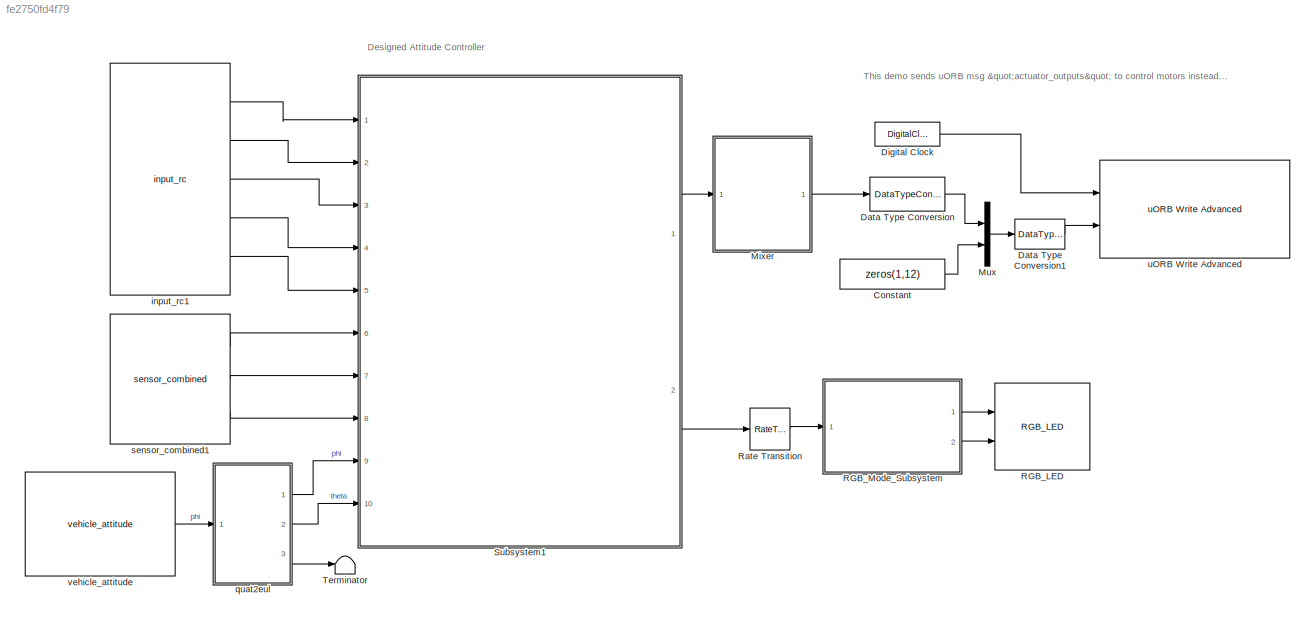
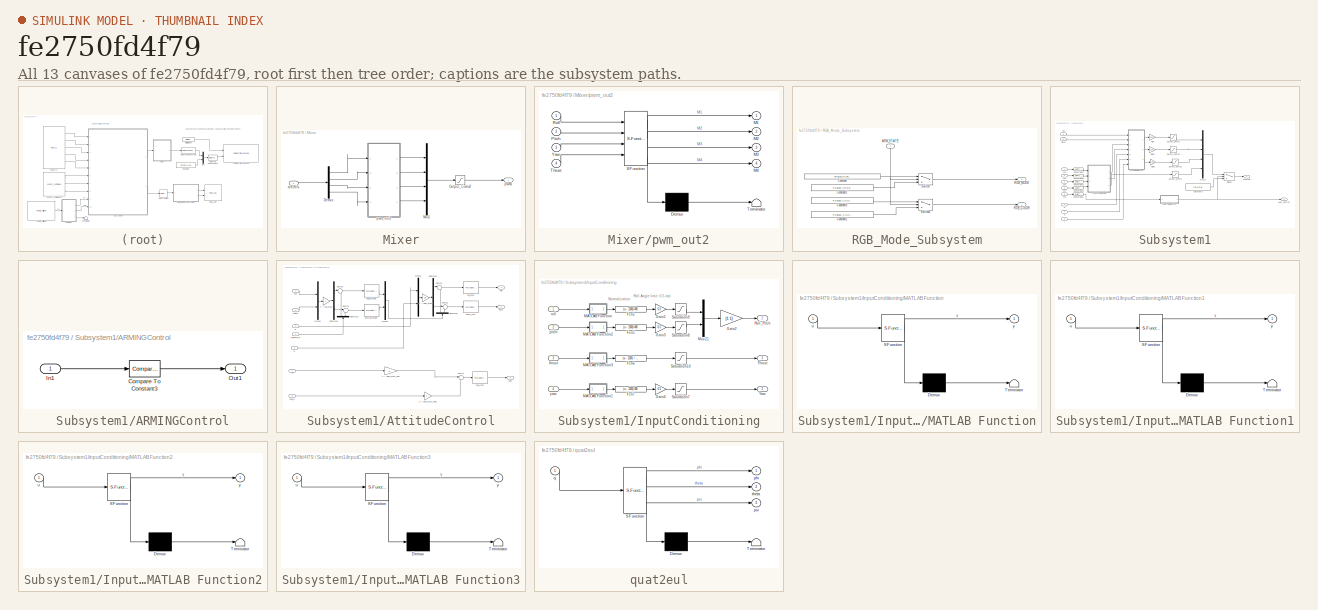
[diagram: thumbnail index - all 13 canvases of the model, root first then tree order]
MODEL slx_fe2750fd4f79
KIND model
CONFIG AbsTol = auto
CONFIG EnableMultiTasking = off
CONFIG FixedStep = auto
CONFIG InitFcn = if exist('Init_control.m','file')\n     Init_control;\nend\n
CONFIG MaxStep = auto
CONFIG MinStep = auto
CONFIG PreLoadFcn = filepath  = fileparts(get_param(bdroot, 'FileName'))\ncd(filepath);
CONFIG RelTol = 1e-3
CONFIG SampleTimeConstraint = Unconstrained
CONFIG Solver = FixedStepDiscrete
CONFIG SolverName = FixedStepDiscrete
CONFIG StartTime = 0.0
CONFIG StopTime = inf
BLOCK [Constant] Constant
  Value = zeros(1,12)
BLOCK [DataTypeConversion] Data Type Conversion
  OutDataTypeStr = double
  RndMeth = Floor
  SaturateOnIntegerOverflow = off
BLOCK [DataTypeConversion] Data Type Conversion1
  OutDataTypeStr = single
  RndMeth = Floor
  SaturateOnIntegerOverflow = off
BLOCK [DigitalClock] Digital Clock
  SampleTime = -1
BLOCK [SubSystem] Mixer
  Ports = [1, 1]
  RequestExecContextInheritance = off
  Variant = off
BLOCK [Demux] Mixer/Demux
  DisplayOption = bar
  Ports = [1, 4]
BLOCK [Mux] Mixer/Mux1
  DisplayOption = bar
  Ports = [4, 1]
BLOCK [Saturate] Mixer/Output_Limits2
  InputPortMap = u0
  LowerLimit = 1000
  Ports = [1, 1]
  UpperLimit = 2000
BLOCK [Inport] Mixer/controls
  IconDisplay = Port number
BLOCK [SubSystem] Mixer/pwm_out2
  ErrorFcn = Stateflow.Translate.translate
  PermitHierarchicalResolution = ExplicitOnly
  Ports = [4, 4]
  RequestExecContextInheritance = off
  SFBlockType = MATLAB Function
  SystemSampleTime = 0.004
  TreatAsAtomicUnit = on
  Variant = off
BLOCK [Demux] Mixer/pwm_out2/ Demux 
  Outputs = 1
  Ports = [1, 1]
BLOCK [S-Function] Mixer/pwm_out2/ SFunction 
  EnableBusSupport = on
  FunctionName = sf_sfun
  PortCounts = [4 5]
  Ports = [4, 5]
  SFcnIsStateOwnerBlock = off
  SFunctionDeploymentMode = off
  Tag = Stateflow S-Function Exp4_AttitudeSystemCodeGen_old 2
BLOCK [Terminator] Mixer/pwm_out2/ Terminator 
BLOCK [Outport] Mixer/pwm_out2/M1
  IconDisplay = Port number
BLOCK [Outport] Mixer/pwm_out2/M2
  IconDisplay = Port number
  Port = 2
BLOCK [Outport] Mixer/pwm_out2/M3
  IconDisplay = Port number
  Port = 3
BLOCK [Outport] Mixer/pwm_out2/M4
  IconDisplay = Port number
  Port = 4
BLOCK [Inport] Mixer/pwm_out2/Pitch
  IconDisplay = Port number
  Port = 2
BLOCK [Inport] Mixer/pwm_out2/Roll
  IconDisplay = Port number
BLOCK [Inport] Mixer/pwm_out2/Thrust
  IconDisplay = Port number
  Port = 4
BLOCK [Inport] Mixer/pwm_out2/Yaw
  IconDisplay = Port number
  Port = 3
BLOCK [Outport] Mixer/pwms
  IconDisplay = Port number
BLOCK [Mux] Mux
  DisplayOption = bar
  Inputs = 2
  Ports = [2, 1]
BLOCK [Reference] RGB_LED  REF=pixhawk_slib_sensors_actuators/RGB_LED
  Ports = [2]
  SourceBlock = pixhawk_slib_sensors_actuators/RGB_LED
  SourceProductName = Pixhawk Target Blocks
  SourceType = PX4_RGBLED - controls the mode and color of the Pixhawk RGB LED
BLOCK [SubSystem] RGB_Mode_Subsystem
  Ports = [1, 2]
  RequestExecContextInheritance = off
  Variant = off
BLOCK [Inport] RGB_Mode_Subsystem/ARM_STATE
  IconDisplay = Port number
BLOCK [Constant] RGB_Mode_Subsystem/Constant
  OutDataTypeStr = Enum: RGBLED_MODE_ENUM
  Value = RGBLED_MODE_ENUM.SL_MODE_BLINK_FAST
BLOCK [Constant] RGB_Mode_Subsystem/Constant1
  OutDataTypeStr = Enum: RGBLED_MODE_ENUM
  Value = RGBLED_MODE_ENUM.SL_MODE_BREATHE
BLOCK [Constant] RGB_Mode_Subsystem/Constant2
  OutDataTypeStr = Enum: RGBLED_COLOR_ENUM
  Value = RGBLED_COLOR_ENUM.SL_COLOR_GREEN
BLOCK [Constant] RGB_Mode_Subsystem/Constant3
  OutDataTypeStr = Enum: RGBLED_COLOR_ENUM
  Value = RGBLED_COLOR_ENUM.SL_COLOR_RED
BLOCK [Outport] RGB_Mode_Subsystem/RGB_COLOR
  IconDisplay = Port number
  Port = 2
BLOCK [Outport] RGB_Mode_Subsystem/RGB_MODE
  IconDisplay = Port number
BLOCK [Switch] RGB_Mode_Subsystem/Switch
  Criteria = u2 ~= 0
  InputSameDT = off
  SaturateOnIntegerOverflow = off
  Threshold = 1500
BLOCK [Switch] RGB_Mode_Subsystem/Switch1
  Criteria = u2 ~= 0
  InputSameDT = off
  SaturateOnIntegerOverflow = off
  Threshold = 1500
BLOCK [RateTransition] Rate Transition
  OutPortSampleTime = 1
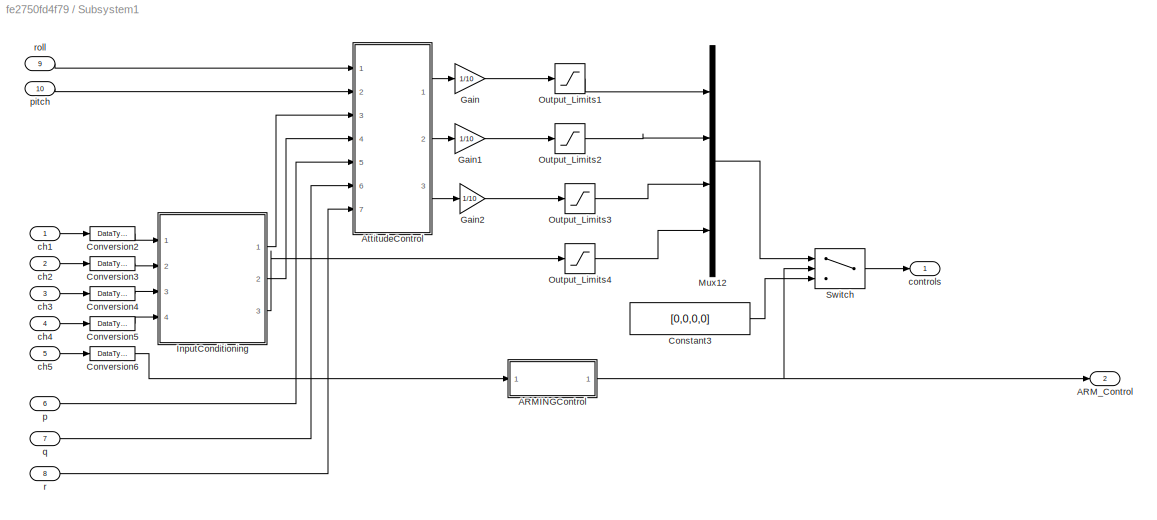
BLOCK [SubSystem] Subsystem1
  Ports = [10, 2]
  RequestExecContextInheritance = off
  Variant = off
BLOCK [SubSystem] Subsystem1/ARMINGControl
  Ports = [1, 1]
  RequestExecContextInheritance = off
  Variant = off
BLOCK [Reference] Subsystem1/ARMINGControl/Compare To Constant3  REF=simulink/Logic and Bit
Operations/Compare
To Constant
  Ports = [1, 1]
  SourceBlock = simulink/Logic and Bit\nOperations/Compare\nTo Constant
  SourceProductBaseCode = SL
  SourceProductName = Simulink
  SourceType = Compare To Constant
BLOCK [Inport] Subsystem1/ARMINGControl/In1
  IconDisplay = Port number
BLOCK [Outport] Subsystem1/ARMINGControl/Out1
  IconDisplay = Port number
BLOCK [Outport] Subsystem1/ARM_Control
  IconDisplay = Port number
  Port = 2
  PortDimensions = 1
  SamplingMode = Sample based
  SignalType = real
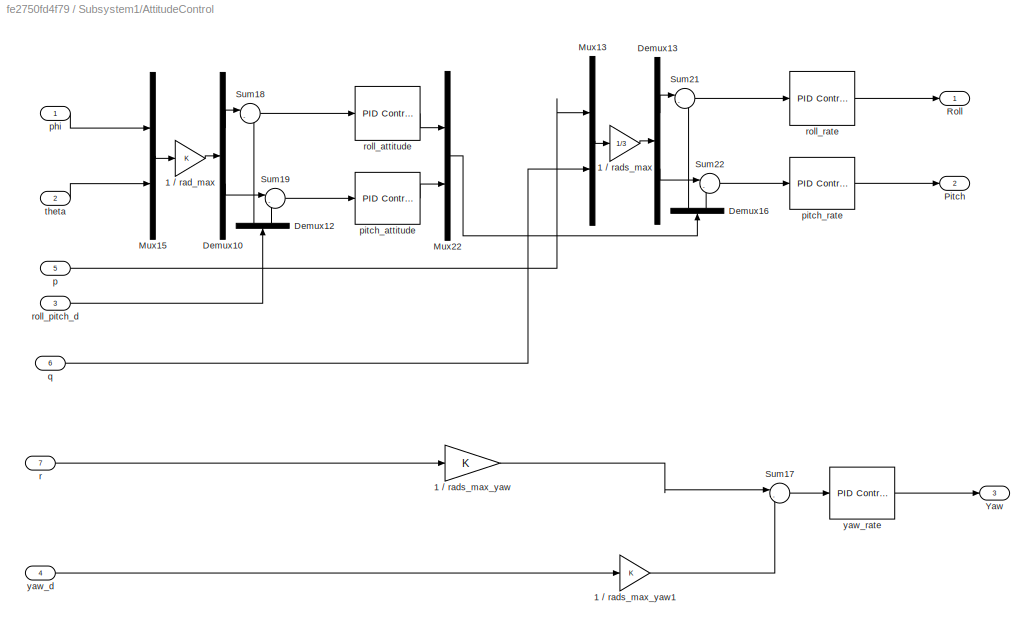
BLOCK [SubSystem] Subsystem1/AttitudeControl
  Ports = [7, 3]
  RequestExecContextInheritance = off
  Variant = off
BLOCK [Gain] Subsystem1/AttitudeControl/1 // rad_max
  OutDataTypeStr = Inherit: Inherit via internal rule
  ParamDataTypeStr = Inherit: Inherit via internal rule
  SaturateOnIntegerOverflow = off
BLOCK [Gain] Subsystem1/AttitudeControl/1 // rads_max
  Gain = 1/3
  OutDataTypeStr = Inherit: Inherit via internal rule
  ParamDataTypeStr = Inherit: Inherit via internal rule
  SaturateOnIntegerOverflow = off
BLOCK [Gain] Subsystem1/AttitudeControl/1 // rads_max_yaw
  OutDataTypeStr = Inherit: Inherit via internal rule
  ParamDataTypeStr = Inherit: Inherit via internal rule
  SaturateOnIntegerOverflow = off
BLOCK [Gain] Subsystem1/AttitudeControl/1 // rads_max_yaw1
  OutDataTypeStr = Inherit: Inherit via internal rule
  ParamDataTypeStr = Inherit: Inherit via internal rule
  SaturateOnIntegerOverflow = off
BLOCK [Demux] Subsystem1/AttitudeControl/Demux10
  DisplayOption = bar
  Outputs = 2
  Ports = [1, 2]
BLOCK [Demux] Subsystem1/AttitudeControl/Demux12
  DisplayOption = bar
  Outputs = 2
  Ports = [1, 2]
BLOCK [Demux] Subsystem1/AttitudeControl/Demux13
  DisplayOption = bar
  Outputs = 2
  Ports = [1, 2]
BLOCK [Demux] Subsystem1/AttitudeControl/Demux16
  DisplayOption = bar
  Outputs = 2
  Ports = [1, 2]
BLOCK [Mux] Subsystem1/AttitudeControl/Mux13
  DisplayOption = bar
  Inputs = 2
  Ports = [2, 1]
BLOCK [Mux] Subsystem1/AttitudeControl/Mux15
  DisplayOption = bar
  Inputs = 2
  Ports = [2, 1]
BLOCK [Mux] Subsystem1/AttitudeControl/Mux22
  DisplayOption = bar
  Inputs = 2
  Ports = [2, 1]
BLOCK [Outport] Subsystem1/AttitudeControl/Pitch
  IconDisplay = Port number
  Port = 2
BLOCK [Outport] Subsystem1/AttitudeControl/Roll
  IconDisplay = Port number
BLOCK [Sum] Subsystem1/AttitudeControl/Sum17
  IconShape = round
  InputSameDT = off
  Inputs = |-+
  OutDataTypeStr = Inherit: Inherit via internal rule
  Ports = [2, 1]
  SaturateOnIntegerOverflow = off
BLOCK [Sum] Subsystem1/AttitudeControl/Sum18
  IconShape = round
  InputSameDT = off
  Inputs = |-+
  OutDataTypeStr = Inherit: Inherit via internal rule
  Ports = [2, 1]
  SaturateOnIntegerOverflow = off
BLOCK [Sum] Subsystem1/AttitudeControl/Sum19
  IconShape = round
  InputSameDT = off
  Inputs = |-+
  OutDataTypeStr = Inherit: Inherit via internal rule
  Ports = [2, 1]
  SaturateOnIntegerOverflow = off
BLOCK [Sum] Subsystem1/AttitudeControl/Sum21
  IconShape = round
  InputSameDT = off
  Inputs = |-+
  OutDataTypeStr = Inherit: Inherit via internal rule
  Ports = [2, 1]
  SaturateOnIntegerOverflow = off
BLOCK [Sum] Subsystem1/AttitudeControl/Sum22
  IconShape = round
  InputSameDT = off
  Inputs = |-+
  OutDataTypeStr = Inherit: Inherit via internal rule
  Ports = [2, 1]
  SaturateOnIntegerOverflow = off
BLOCK [Outport] Subsystem1/AttitudeControl/Yaw
  IconDisplay = Port number
  Port = 3
BLOCK [Inport] Subsystem1/AttitudeControl/p
  IconDisplay = Port number
  Port = 5
BLOCK [Inport] Subsystem1/AttitudeControl/phi
  IconDisplay = Port number
BLOCK [Reference] Subsystem1/AttitudeControl/pitch_attitude  REF=simulink/Continuous/PID Controller
  Ports = [1, 1]
  SourceBlock = simulink/Continuous/PID Controller
  SourceProductBaseCode = SL
  SourceProductName = Simulink
  SourceType = PID 1dof
BLOCK [Reference] Subsystem1/AttitudeControl/pitch_rate  REF=simulink/Continuous/PID Controller
  Ports = [1, 1]
  SourceBlock = simulink/Continuous/PID Controller
  SourceProductBaseCode = SL
  SourceProductName = Simulink
  SourceType = PID 1dof
BLOCK [Inport] Subsystem1/AttitudeControl/q
  IconDisplay = Port number
  Port = 6
BLOCK [Inport] Subsystem1/AttitudeControl/r
  IconDisplay = Port number
  Port = 7
BLOCK [Reference] Subsystem1/AttitudeControl/roll_attitude  REF=simulink/Continuous/PID Controller
  Ports = [1, 1]
  SourceBlock = simulink/Continuous/PID Controller
  SourceProductBaseCode = SL
  SourceProductName = Simulink
  SourceType = PID 1dof
BLOCK [Inport] Subsystem1/AttitudeControl/roll_pitch_d
  IconDisplay = Port number
  Port = 3
BLOCK [Reference] Subsystem1/AttitudeControl/roll_rate  REF=simulink/Continuous/PID Controller
  Ports = [1, 1]
  SourceBlock = simulink/Continuous/PID Controller
  SourceProductBaseCode = SL
  SourceProductName = Simulink
  SourceType = PID 1dof
BLOCK [Inport] Subsystem1/AttitudeControl/theta
  IconDisplay = Port number
  Port = 2
BLOCK [Inport] Subsystem1/AttitudeControl/yaw_d
  IconDisplay = Port number
  Port = 4
BLOCK [Reference] Subsystem1/AttitudeControl/yaw_rate  REF=simulink/Continuous/PID Controller
  Ports = [1, 1]
  SourceBlock = simulink/Continuous/PID Controller
  SourceProductBaseCode = SL
  SourceProductName = Simulink
  SourceType = PID 1dof
BLOCK [Constant] Subsystem1/Constant3
  Value = [0,0,0,0]
BLOCK [DataTypeConversion] Subsystem1/Conversion2
  OutDataTypeStr = double
  RndMeth = Floor
  SaturateOnIntegerOverflow = off
BLOCK [DataTypeConversion] Subsystem1/Conversion3
  OutDataTypeStr = double
  RndMeth = Floor
  SaturateOnIntegerOverflow = off
BLOCK [DataTypeConversion] Subsystem1/Conversion4
  OutDataTypeStr = double
  RndMeth = Floor
  SaturateOnIntegerOverflow = off
BLOCK [DataTypeConversion] Subsystem1/Conversion5
  OutDataTypeStr = double
  RndMeth = Floor
  SaturateOnIntegerOverflow = off
BLOCK [DataTypeConversion] Subsystem1/Conversion6
  OutDataTypeStr = double
  RndMeth = Floor
  SaturateOnIntegerOverflow = off
BLOCK [Gain] Subsystem1/Gain
  Gain = 1/10
  OutDataTypeStr = Inherit: Inherit via internal rule
  ParamDataTypeStr = Inherit: Inherit via internal rule
  SaturateOnIntegerOverflow = off
BLOCK [Gain] Subsystem1/Gain1
  Gain = 1/10
  OutDataTypeStr = Inherit: Inherit via internal rule
  ParamDataTypeStr = Inherit: Inherit via internal rule
  SaturateOnIntegerOverflow = off
BLOCK [Gain] Subsystem1/Gain2
  Gain = 1/10
  OutDataTypeStr = Inherit: Inherit via internal rule
  ParamDataTypeStr = Inherit: Inherit via internal rule
  SaturateOnIntegerOverflow = off
BLOCK [SubSystem] Subsystem1/InputConditioning
  Ports = [4, 3]
  RequestExecContextInheritance = off
  Variant = off
BLOCK [Fcn] Subsystem1/InputConditioning/Fcn2
  Expr = (u - 1500)/400
BLOCK [Fcn] Subsystem1/InputConditioning/Fcn5
  Expr = (u - 1500)/400
BLOCK [Fcn] Subsystem1/InputConditioning/Fcn6
  Expr = (u - 1100) / 800
BLOCK [Fcn] Subsystem1/InputConditioning/Fcn7
  Expr = (u - 1500)/400
BLOCK [Gain] Subsystem1/InputConditioning/Gain1
  Gain = 0.5
  OutDataTypeStr = Inherit: Inherit via internal rule
  ParamDataTypeStr = Inherit: Inherit via internal rule
  SaturateOnIntegerOverflow = off
BLOCK [Gain] Subsystem1/InputConditioning/Gain2
  Gain = [1 1]
  OutDataTypeStr = Inherit: Inherit via back propagation
  ParamDataTypeStr = Inherit: Inherit via internal rule
  SaturateOnIntegerOverflow = off
BLOCK [Gain] Subsystem1/InputConditioning/Gain3
  Gain = 0.5
  OutDataTypeStr = Inherit: Inherit via internal rule
  ParamDataTypeStr = Inherit: Inherit via internal rule
  SaturateOnIntegerOverflow = off
BLOCK [Gain] Subsystem1/InputConditioning/Gain4
  Gain = 0.5
  OutDataTypeStr = Inherit: Inherit via internal rule
  ParamDataTypeStr = Inherit: Inherit via internal rule
  SaturateOnIntegerOverflow = off
BLOCK [SubSystem] Subsystem1/InputConditioning/MATLAB Function
  ErrorFcn = Stateflow.Translate.translate
  PermitHierarchicalResolution = ExplicitOnly
  Ports = [1, 1]
  RequestExecContextInheritance = off
  SFBlockType = MATLAB Function
  TreatAsAtomicUnit = on
  Variant = off
BLOCK [Demux] Subsystem1/InputConditioning/MATLAB Function/ Demux 
  Outputs = 1
  Ports = [1, 1]
BLOCK [S-Function] Subsystem1/InputConditioning/MATLAB Function/ SFunction 
  EnableBusSupport = on
  FunctionName = sf_sfun
  PortCounts = [1 2]
  Ports = [1, 2]
  SFcnIsStateOwnerBlock = off
  SFunctionDeploymentMode = off
  Tag = Stateflow S-Function Exp4_AttitudeSystemCodeGen_old 3
BLOCK [Terminator] Subsystem1/InputConditioning/MATLAB Function/ Terminator 
BLOCK [Inport] Subsystem1/InputConditioning/MATLAB Function/u
  IconDisplay = Port number
BLOCK [Outport] Subsystem1/InputConditioning/MATLAB Function/y
  IconDisplay = Port number
BLOCK [SubSystem] Subsystem1/InputConditioning/MATLAB Function1
  ErrorFcn = Stateflow.Translate.translate
  PermitHierarchicalResolution = ExplicitOnly
  Ports = [1, 1]
  RequestExecContextInheritance = off
  SFBlockType = MATLAB Function
  TreatAsAtomicUnit = on
  Variant = off
BLOCK [Demux] Subsystem1/InputConditioning/MATLAB Function1/ Demux 
  Outputs = 1
  Ports = [1, 1]
BLOCK [S-Function] Subsystem1/InputConditioning/MATLAB Function1/ SFunction 
  EnableBusSupport = on
  FunctionName = sf_sfun
  PortCounts = [1 2]
  Ports = [1, 2]
  SFcnIsStateOwnerBlock = off
  SFunctionDeploymentMode = off
  Tag = Stateflow S-Function Exp4_AttitudeSystemCodeGen_old 5
BLOCK [Terminator] Subsystem1/InputConditioning/MATLAB Function1/ Terminator 
BLOCK [Inport] Subsystem1/InputConditioning/MATLAB Function1/u
  IconDisplay = Port number
BLOCK [Outport] Subsystem1/InputConditioning/MATLAB Function1/y
  IconDisplay = Port number
BLOCK [SubSystem] Subsystem1/InputConditioning/MATLAB Function2
  ErrorFcn = Stateflow.Translate.translate
  PermitHierarchicalResolution = ExplicitOnly
  Ports = [1, 1]
  RequestExecContextInheritance = off
  SFBlockType = MATLAB Function
  TreatAsAtomicUnit = on
  Variant = off
BLOCK [Demux] Subsystem1/InputConditioning/MATLAB Function2/ Demux 
  Outputs = 1
  Ports = [1, 1]
BLOCK [S-Function] Subsystem1/InputConditioning/MATLAB Function2/ SFunction 
  EnableBusSupport = on
  FunctionName = sf_sfun
  PortCounts = [1 2]
  Ports = [1, 2]
  SFcnIsStateOwnerBlock = off
  SFunctionDeploymentMode = off
  Tag = Stateflow S-Function Exp4_AttitudeSystemCodeGen_old 7
BLOCK [Terminator] Subsystem1/InputConditioning/MATLAB Function2/ Terminator 
BLOCK [Inport] Subsystem1/InputConditioning/MATLAB Function2/u
  IconDisplay = Port number
BLOCK [Outport] Subsystem1/InputConditioning/MATLAB Function2/y
  IconDisplay = Port number
BLOCK [SubSystem] Subsystem1/InputConditioning/MATLAB Function3
  ErrorFcn = Stateflow.Translate.translate
  PermitHierarchicalResolution = ExplicitOnly
  Ports = [1, 1]
  RequestExecContextInheritance = off
  SFBlockType = MATLAB Function
  TreatAsAtomicUnit = on
  Variant = off
BLOCK [Demux] Subsystem1/InputConditioning/MATLAB Function3/ Demux 
  Outputs = 1
  Ports = [1, 1]
BLOCK [S-Function] Subsystem1/InputConditioning/MATLAB Function3/ SFunction 
  EnableBusSupport = on
  FunctionName = sf_sfun
  PortCounts = [1 2]
  Ports = [1, 2]
  SFcnIsStateOwnerBlock = off
  SFunctionDeploymentMode = off
  Tag = Stateflow S-Function Exp4_AttitudeSystemCodeGen_old 9
BLOCK [Terminator] Subsystem1/InputConditioning/MATLAB Function3/ Terminator 
BLOCK [Inport] Subsystem1/InputConditioning/MATLAB Function3/u
  IconDisplay = Port number
BLOCK [Outport] Subsystem1/InputConditioning/MATLAB Function3/y
  IconDisplay = Port number
BLOCK [Mux] Subsystem1/InputConditioning/Mux21
  DisplayOption = bar
  Inputs = 2
  Ports = [2, 1]
BLOCK [Outport] Subsystem1/InputConditioning/Roll_Pitch
  IconDisplay = Port number
BLOCK [Saturate] Subsystem1/InputConditioning/Saturation10
  InputPortMap = u0
  LowerLimit = 0
  Ports = [1, 1]
  UpperLimit = 1
BLOCK [Saturate] Subsystem1/InputConditioning/Saturation7
  InputPortMap = u0
  LowerLimit = -1
  Ports = [1, 1]
  UpperLimit = 1
BLOCK [Saturate] Subsystem1/InputConditioning/Saturation8
  InputPortMap = u0
  LowerLimit = -1
  Ports = [1, 1]
  UpperLimit = 1
BLOCK [Saturate] Subsystem1/InputConditioning/Saturation9
  InputPortMap = u0
  LowerLimit = -1
  Ports = [1, 1]
  UpperLimit = 1
BLOCK [Outport] Subsystem1/InputConditioning/Thrust
  IconDisplay = Port number
  Port = 3
BLOCK [Outport] Subsystem1/InputConditioning/Yaw
  IconDisplay = Port number
  Port = 2
BLOCK [Inport] Subsystem1/InputConditioning/pitch
  IconDisplay = Port number
  Port = 2
BLOCK [Inport] Subsystem1/InputConditioning/roll
  IconDisplay = Port number
BLOCK [Inport] Subsystem1/InputConditioning/thrust
  IconDisplay = Port number
  Port = 3
BLOCK [Inport] Subsystem1/InputConditioning/yaw
  IconDisplay = Port number
  Port = 4
BLOCK [Mux] Subsystem1/Mux12
  DisplayOption = bar
  Ports = [4, 1]
BLOCK [Saturate] Subsystem1/Output_Limits1
  InputPortMap = u0
  LowerLimit = -1
  Ports = [1, 1]
  UpperLimit = 1
BLOCK [Saturate] Subsystem1/Output_Limits2
  InputPortMap = u0
  LowerLimit = -1
  Ports = [1, 1]
  UpperLimit = 1
BLOCK [Saturate] Subsystem1/Output_Limits3
  InputPortMap = u0
  LowerLimit = -1
  Ports = [1, 1]
  UpperLimit = 1
BLOCK [Saturate] Subsystem1/Output_Limits4
  InputPortMap = u0
  LowerLimit = 0
  Ports = [1, 1]
  UpperLimit = 1
BLOCK [Switch] Subsystem1/Switch
  Criteria = u2 > Threshold
  InputSameDT = off
  SaturateOnIntegerOverflow = off
  Threshold = 0.5
BLOCK [Inport] Subsystem1/ch1
  IconDisplay = Port number
  OutDataTypeStr = uint16
  PortDimensions = 1
  SamplingMode = Sample based
  SignalType = real
BLOCK [Inport] Subsystem1/ch2
  IconDisplay = Port number
  OutDataTypeStr = uint16
  Port = 2
  PortDimensions = 1
  SamplingMode = Sample based
  SignalType = real
BLOCK [Inport] Subsystem1/ch3
  IconDisplay = Port number
  OutDataTypeStr = uint16
  Port = 3
  PortDimensions = 1
  SamplingMode = Sample based
  SignalType = real
BLOCK [Inport] Subsystem1/ch4
  IconDisplay = Port number
  OutDataTypeStr = uint16
  Port = 4
  PortDimensions = 1
  SamplingMode = Sample based
  SignalType = real
BLOCK [Inport] Subsystem1/ch5
  IconDisplay = Port number
  Interpolate = off
  OutDataTypeStr = uint16
  Port = 5
  PortDimensions = 1
  SamplingMode = Sample based
  SignalType = real
BLOCK [Outport] Subsystem1/controls
  IconDisplay = Port number
  PortDimensions = 4
  SamplingMode = Sample based
  SignalType = real
BLOCK [Inport] Subsystem1/p
  IconDisplay = Port number
  Port = 6
  PortDimensions = 1
  SamplingMode = Sample based
  SignalType = real
BLOCK [Inport] Subsystem1/pitch
  IconDisplay = Port number
  Port = 10
  PortDimensions = 1
  SamplingMode = Sample based
  SignalType = real
BLOCK [Inport] Subsystem1/q
  IconDisplay = Port number
  Port = 7
  PortDimensions = 1
  SamplingMode = Sample based
  SignalType = real
BLOCK [Inport] Subsystem1/r
  IconDisplay = Port number
  Port = 8
  PortDimensions = 1
  SamplingMode = Sample based
  SignalType = real
BLOCK [Inport] Subsystem1/roll
  IconDisplay = Port number
  Port = 9
  PortDimensions = 1
  SamplingMode = Sample based
  SignalType = real
BLOCK [Terminator] Terminator
BLOCK [Reference] input_rc1  REF=pixhawk_slib_sensors_actuators/input_rc
  Description = RC Input Block\n\nThis block provides user input control to the model.\nIt uses the input_rc uORB topic.\n\nThe user has the ability to choose which channels are available as outputs from this block and also some optional outputs. These include \nChannels 1 through 18\ndouble data type indicating the PWM value from the controller \nmeasured pulse widths for each of the supported channels \nChannel Count \nu...<+1797ch>
  Ports = [0, 5]
  SourceBlock = pixhawk_slib_sensors_actuators/input_rc
  SourceProductName = Pixhawk Target Blocks
  SourceType = PX4_Input_RC
BLOCK [SubSystem] quat2eul
  ErrorFcn = Stateflow.Translate.translate
  PermitHierarchicalResolution = ExplicitOnly
  Ports = [1, 3]
  RequestExecContextInheritance = off
  SFBlockType = MATLAB Function
  TreatAsAtomicUnit = on
  Variant = off
BLOCK [Demux] quat2eul/ Demux 
  Outputs = 1
  Ports = [1, 1]
BLOCK [S-Function] quat2eul/ SFunction 
  EnableBusSupport = on
  FunctionName = sf_sfun
  PortCounts = [1 4]
  Ports = [1, 4]
  SFcnIsStateOwnerBlock = off
  SFunctionDeploymentMode = off
  Tag = Stateflow S-Function Exp4_AttitudeSystemCodeGen_old 10
BLOCK [Terminator] quat2eul/ Terminator 
BLOCK [Outport] quat2eul/phi
  IconDisplay = Port number
BLOCK [Outport] quat2eul/psi
  IconDisplay = Port number
  Port = 3
BLOCK [Inport] quat2eul/q
  IconDisplay = Port number
BLOCK [Outport] quat2eul/theta
  IconDisplay = Port number
  Port = 2
BLOCK [Reference] sensor_combined1  REF=pixhawk_slib_sensors_actuators/sensor_combined
  Description = Sensor Combined Block\n\nThis block enables access to the various sensors available on the px4fmu-v2 hardware.  \nThe user can use these signals in the Simulink control model.  \nThe sample time needs to be provided in the mask dialog.  \nOptional output ports can also be selected.  \nRefer to the sample model: px4demo_attitude_control.slx\n\nSignal definitions: \nMagnetometer (x,y,z) - single values – Mag...<+514ch>
  Ports = [0, 3]
  SourceBlock = pixhawk_slib_sensors_actuators/sensor_combined
  SourceProductName = Pixhawk Target Blocks
  SourceType = PX4_Sensor_Combined
BLOCK [Reference] uORB Write Advanced  REF=pixhawk_slib_uORB_RW/uORB Write Advanced
  Ports = [2]
  SourceBlock = pixhawk_slib_uORB_RW/uORB Write Advanced
  SourceProductName = Pixhawk Target Blocks
  UserDataPersistent = on
BLOCK [Reference] vehicle_attitude  REF=pixhawk_slib_sensors_actuators/vehicle_attitude
  Ports = [0, 1]
  SourceBlock = pixhawk_slib_sensors_actuators/vehicle_attitude
  SourceProductName = Pixhawk Target Blocks
  SourceType = PX4_Vehicle_Attitude
ANNOTATION (root): Designed Attitude Controller
ANNOTATION (root): This demo sends uORB msg "actuator_outputs" to control motors instead of using the "PWM_output" module, because this demo is for hardware-in-the-loop simulation, we need to send control signals to CopterSim instead of acutal motors.
ANNOTATION Subsystem1/InputConditioning: Normalization
ANNOTATION Subsystem1/InputConditioning: Roll Angle limit: 0.5 rad
LINE Constant:1 -> Mux:2
LINE Data Type Conversion1:1 -> uORB Write Advanced:2
LINE Data Type Conversion:1 -> Mux:1
LINE Digital Clock:1 -> uORB Write Advanced:1
LINE Mixer/Demux:1 -> Mixer/pwm_out2:1
LINE Mixer/Demux:2 -> Mixer/pwm_out2:2
LINE Mixer/Demux:3 -> Mixer/pwm_out2:3
LINE Mixer/Demux:4 -> Mixer/pwm_out2:4
LINE Mixer/Mux1:1 -> Mixer/Output_Limits2:1
LINE Mixer/Output_Limits2:1 -> Mixer/pwms:1
LINE Mixer/controls:1 -> Mixer/Demux:1
LINE Mixer/pwm_out2:1 -> Mixer/Mux1:1
LINE Mixer/pwm_out2:2 -> Mixer/Mux1:2
LINE Mixer/pwm_out2:3 -> Mixer/Mux1:3
LINE Mixer/pwm_out2:4 -> Mixer/Mux1:4
LINE Mixer:1 -> Data Type Conversion:1
LINE Mux:1 -> Data Type Conversion1:1
NET RGB_Mode_Subsystem/ARM_STATE:1 -> RGB_Mode_Subsystem/Switch1:2, RGB_Mode_Subsystem/Switch:2
LINE RGB_Mode_Subsystem/Constant1:1 -> RGB_Mode_Subsystem/Switch:3
LINE RGB_Mode_Subsystem/Constant2:1 -> RGB_Mode_Subsystem/Switch1:3
LINE RGB_Mode_Subsystem/Constant3:1 -> RGB_Mode_Subsystem/Switch1:1
LINE RGB_Mode_Subsystem/Constant:1 -> RGB_Mode_Subsystem/Switch:1
LINE RGB_Mode_Subsystem/Switch1:1 -> RGB_Mode_Subsystem/RGB_COLOR:1
LINE RGB_Mode_Subsystem/Switch:1 -> RGB_Mode_Subsystem/RGB_MODE:1
LINE RGB_Mode_Subsystem:1 -> RGB_LED:1
LINE RGB_Mode_Subsystem:2 -> RGB_LED:2
LINE Rate Transition:1 -> RGB_Mode_Subsystem:1
LINE Subsystem1/ARMINGControl/Compare To Constant3:1 -> Subsystem1/ARMINGControl/Out1:1
LINE Subsystem1/ARMINGControl/In1:1 -> Subsystem1/ARMINGControl/Compare To Constant3:1
NET Subsystem1/ARMINGControl:1 -> Subsystem1/ARM_Control:1, Subsystem1/Switch:2
LINE Subsystem1/AttitudeControl/1 // rad_max:1 -> Subsystem1/AttitudeControl/Demux10:1
LINE Subsystem1/AttitudeControl/1 // rads_max:1 -> Subsystem1/AttitudeControl/Demux13:1
LINE Subsystem1/AttitudeControl/1 // rads_max_yaw1:1 -> Subsystem1/AttitudeControl/Sum17:2
LINE Subsystem1/AttitudeControl/1 // rads_max_yaw:1 -> Subsystem1/AttitudeControl/Sum17:1
LINE Subsystem1/AttitudeControl/Demux10:1 -> Subsystem1/AttitudeControl/Sum18:1
LINE Subsystem1/AttitudeControl/Demux10:2 -> Subsystem1/AttitudeControl/Sum19:1
LINE Subsystem1/AttitudeControl/Demux12:1 -> Subsystem1/AttitudeControl/Sum18:2
LINE Subsystem1/AttitudeControl/Demux12:2 -> Subsystem1/AttitudeControl/Sum19:2
LINE Subsystem1/AttitudeControl/Demux13:1 -> Subsystem1/AttitudeControl/Sum21:1
LINE Subsystem1/AttitudeControl/Demux13:2 -> Subsystem1/AttitudeControl/Sum22:1
LINE Subsystem1/AttitudeControl/Demux16:1 -> Subsystem1/AttitudeControl/Sum21:2
LINE Subsystem1/AttitudeControl/Demux16:2 -> Subsystem1/AttitudeControl/Sum22:2
LINE Subsystem1/AttitudeControl/Mux13:1 -> Subsystem1/AttitudeControl/1 // rads_max:1
LINE Subsystem1/AttitudeControl/Mux15:1 -> Subsystem1/AttitudeControl/1 // rad_max:1
LINE Subsystem1/AttitudeControl/Mux22:1 -> Subsystem1/AttitudeControl/Demux16:1
LINE Subsystem1/AttitudeControl/Sum17:1 -> Subsystem1/AttitudeControl/yaw_rate:1
LINE Subsystem1/AttitudeControl/Sum18:1 -> Subsystem1/AttitudeControl/roll_attitude:1
LINE Subsystem1/AttitudeControl/Sum19:1 -> Subsystem1/AttitudeControl/pitch_attitude:1
LINE Subsystem1/AttitudeControl/Sum21:1 -> Subsystem1/AttitudeControl/roll_rate:1
LINE Subsystem1/AttitudeControl/Sum22:1 -> Subsystem1/AttitudeControl/pitch_rate:1
LINE Subsystem1/AttitudeControl/p:1 -> Subsystem1/AttitudeControl/Mux13:1
LINE Subsystem1/AttitudeControl/phi:1 -> Subsystem1/AttitudeControl/Mux15:1
LINE Subsystem1/AttitudeControl/pitch_attitude:1 -> Subsystem1/AttitudeControl/Mux22:2
LINE Subsystem1/AttitudeControl/pitch_rate:1 -> Subsystem1/AttitudeControl/Pitch:1
LINE Subsystem1/AttitudeControl/q:1 -> Subsystem1/AttitudeControl/Mux13:2
LINE Subsystem1/AttitudeControl/r:1 -> Subsystem1/AttitudeControl/1 // rads_max_yaw:1
LINE Subsystem1/AttitudeControl/roll_attitude:1 -> Subsystem1/AttitudeControl/Mux22:1
LINE Subsystem1/AttitudeControl/roll_pitch_d:1 -> Subsystem1/AttitudeControl/Demux12:1
LINE Subsystem1/AttitudeControl/roll_rate:1 -> Subsystem1/AttitudeControl/Roll:1
LINE Subsystem1/AttitudeControl/theta:1 -> Subsystem1/AttitudeControl/Mux15:2
LINE Subsystem1/AttitudeControl/yaw_d:1 -> Subsystem1/AttitudeControl/1 // rads_max_yaw1:1
LINE Subsystem1/AttitudeControl/yaw_rate:1 -> Subsystem1/AttitudeControl/Yaw:1
LINE Subsystem1/AttitudeControl:1 -> Subsystem1/Gain:1
LINE Subsystem1/AttitudeControl:2 -> Subsystem1/Gain1:1
LINE Subsystem1/AttitudeControl:3 -> Subsystem1/Gain2:1
LINE Subsystem1/Constant3:1 -> Subsystem1/Switch:3
LINE Subsystem1/Conversion2:1 -> Subsystem1/InputConditioning:1
LINE Subsystem1/Conversion3:1 -> Subsystem1/InputConditioning:2
LINE Subsystem1/Conversion4:1 -> Subsystem1/InputConditioning:3
LINE Subsystem1/Conversion5:1 -> Subsystem1/InputConditioning:4
LINE Subsystem1/Conversion6:1 -> Subsystem1/ARMINGControl:1
LINE Subsystem1/Gain1:1 -> Subsystem1/Output_Limits2:1
LINE Subsystem1/Gain2:1 -> Subsystem1/Output_Limits3:1
LINE Subsystem1/Gain:1 -> Subsystem1/Output_Limits1:1
LINE Subsystem1/InputConditioning/Fcn2:1 -> Subsystem1/InputConditioning/Gain1:1
LINE Subsystem1/InputConditioning/Fcn5:1 -> Subsystem1/InputConditioning/Gain3:1
LINE Subsystem1/InputConditioning/Fcn6:1 -> Subsystem1/InputConditioning/Saturation10:1
LINE Subsystem1/InputConditioning/Fcn7:1 -> Subsystem1/InputConditioning/Gain4:1
LINE Subsystem1/InputConditioning/Gain1:1 -> Subsystem1/InputConditioning/Saturation9:1
LINE Subsystem1/InputConditioning/Gain2:1 -> Subsystem1/InputConditioning/Roll_Pitch:1
LINE Subsystem1/InputConditioning/Gain3:1 -> Subsystem1/InputConditioning/Saturation8:1
LINE Subsystem1/InputConditioning/Gain4:1 -> Subsystem1/InputConditioning/Saturation7:1
LINE Subsystem1/InputConditioning/MATLAB Function1:1 -> Subsystem1/InputConditioning/Fcn7:1
LINE Subsystem1/InputConditioning/MATLAB Function2:1 -> Subsystem1/InputConditioning/Fcn5:1
LINE Subsystem1/InputConditioning/MATLAB Function3:1 -> Subsystem1/InputConditioning/Fcn6:1
LINE Subsystem1/InputConditioning/MATLAB Function:1 -> Subsystem1/InputConditioning/Fcn2:1
LINE Subsystem1/InputConditioning/Mux21:1 -> Subsystem1/InputConditioning/Gain2:1
LINE Subsystem1/InputConditioning/Saturation10:1 -> Subsystem1/InputConditioning/Thrust:1
LINE Subsystem1/InputConditioning/Saturation7:1 -> Subsystem1/InputConditioning/Yaw:1
LINE Subsystem1/InputConditioning/Saturation8:1 -> Subsystem1/InputConditioning/Mux21:2
LINE Subsystem1/InputConditioning/Saturation9:1 -> Subsystem1/InputConditioning/Mux21:1
LINE Subsystem1/InputConditioning/pitch:1 -> Subsystem1/InputConditioning/MATLAB Function2:1
LINE Subsystem1/InputConditioning/roll:1 -> Subsystem1/InputConditioning/MATLAB Function:1
LINE Subsystem1/InputConditioning/thrust:1 -> Subsystem1/InputConditioning/MATLAB Function3:1
LINE Subsystem1/InputConditioning/yaw:1 -> Subsystem1/InputConditioning/MATLAB Function1:1
LINE Subsystem1/InputConditioning:1 -> Subsystem1/AttitudeControl:3
LINE Subsystem1/InputConditioning:2 -> Subsystem1/AttitudeControl:4
LINE Subsystem1/InputConditioning:3 -> Subsystem1/Output_Limits4:1
LINE Subsystem1/Mux12:1 -> Subsystem1/Switch:1
LINE Subsystem1/Output_Limits1:1 -> Subsystem1/Mux12:1
LINE Subsystem1/Output_Limits2:1 -> Subsystem1/Mux12:2
LINE Subsystem1/Output_Limits3:1 -> Subsystem1/Mux12:3
LINE Subsystem1/Output_Limits4:1 -> Subsystem1/Mux12:4
LINE Subsystem1/Switch:1 -> Subsystem1/controls:1
LINE Subsystem1/ch1:1 -> Subsystem1/Conversion2:1
LINE Subsystem1/ch2:1 -> Subsystem1/Conversion3:1
LINE Subsystem1/ch3:1 -> Subsystem1/Conversion4:1
LINE Subsystem1/ch4:1 -> Subsystem1/Conversion5:1
LINE Subsystem1/ch5:1 -> Subsystem1/Conversion6:1
LINE Subsystem1/p:1 -> Subsystem1/AttitudeControl:5
LINE Subsystem1/pitch:1 -> Subsystem1/AttitudeControl:2
LINE Subsystem1/q:1 -> Subsystem1/AttitudeControl:6
LINE Subsystem1/r:1 -> Subsystem1/AttitudeControl:7
LINE Subsystem1/roll:1 -> Subsystem1/AttitudeControl:1
LINE Subsystem1:1 -> Mixer:1
LINE Subsystem1:2 -> Rate Transition:1
LINE input_rc1:1 -> Subsystem1:1
LINE input_rc1:2 -> Subsystem1:2
LINE input_rc1:3 -> Subsystem1:3
LINE input_rc1:4 -> Subsystem1:4
LINE input_rc1:5 -> Subsystem1:5
LINE quat2eul:1 -> Subsystem1:9
LINE quat2eul:2 -> Subsystem1:10
LINE quat2eul:3 -> Terminator:1
LINE sensor_combined1:1 -> Subsystem1:6
LINE sensor_combined1:2 -> Subsystem1:7
LINE sensor_combined1:3 -> Subsystem1:8
LINE vehicle_attitude:1 -> quat2eul:1
note: NET lines group one-source signal fan-out (src -> all destinations, sorted); 1:1 wires keep LINE
CHART Mixer/pwm_out2 states=1 transitions=1
  STATE_LABEL 'eML_blk_kernel()'
  STATE_LABEL 'SCRIPT:\nfunction [M1, M2, M3, M4] = motor_mixer(Roll, Pitch, Yaw, Thrust)\n\nidle_PWM = 1000;\n\n% Quad XROLL （根据QP里面的叉字形结构的文字）\n% M1 = ((Pitch+ Yaw)+Thrust-Roll) * 1000 + idle_PWM;\n %M2 = ((Pitch - Yaw)+Thrust+Roll) * 1000 + idle_PWM;\n %M3 = ((Roll +Yaw) + Thrust-Pitch) * 1000 + idle_PWM;\n %M4 = ((-Roll - Pitch-Yaw) + Thrust) * 1000 + idle_PWM;\n% M5 = 1000;\n% M6 = 1000;\n% M7 = 1000;\n% M8 = 1000;\n%qp上实...<+2078ch>'
CHART Subsystem1/InputConditioning/MATLAB Function states=1 transitions=1
  STATE_LABEL 'eML_blk_kernel()'
  STATE_LABEL 'SCRIPT:\nfunction y = fcn(u)\n%将遥控输入的范围控制在1100~1900，同时设置一个死区，死区大小为±deadZone\nRCMin = 1100;\nRCMax = 1900;\ndeadZoneRate = 0.05;\ndeadZone = deadZoneRate*(RCMax-RCMin);\n%限幅\nif(u < RCMin)\n    u = RCMin;\nelseif(u > RCMax)\n    u = RCMax;\nend\n%死区\n if(u > 1500+deadZone)\n    y = u;\n elseif(u < 1500-deadZone)\n     y = u;\n else\n     y = 1500;\n end\n     \n end\n \n'
CHART Subsystem1/InputConditioning/MATLAB Function1 states=1 transitions=1
  STATE_LABEL 'eML_blk_kernel()'
  STATE_LABEL 'SCRIPT:\nfunction y = fcn(u)\n%将遥控输入的范围控制在1100~1900，同时设置一个死区，死区大小为±deadZone\nRCMin = 1100;\nRCMax = 1900;\ndeadZoneRate = 0.05;\ndeadZone = deadZoneRate*(RCMax-RCMin);\n%限幅\nif(u < RCMin)\n    u = RCMin;\nelseif(u > RCMax)\n    u = RCMax;\nend\n%死区\n if(u > 1500+deadZone)\n    y = u;\n elseif(u < 1500-deadZone)\n     y = u;\n else\n     y = 1500;\n end\n     \n end\n \n\n \n'  <repeated x3 — deduplicated; at blocks: MATLAB Function1, MATLAB Function2, MATLAB Function3>
CHART Subsystem1/InputConditioning/MATLAB Function2 states=1 transitions=1
  STATE_LABEL 'eML_blk_kernel()'
CHART Subsystem1/InputConditioning/MATLAB Function3 states=1 transitions=1
  STATE_LABEL 'eML_blk_kernel()'
CHART quat2eul states=1 transitions=1
  STATE_LABEL 'eML_blk_kernel()'
  STATE_LABEL 'SCRIPT:\nfunction [phi,theta,psi] = quat2eul(q)\n% Conversion from Quaternion to Euler angles based on the PX4 Firmware\n% v1.6.5 release.\n% \n% Quaternion -> DCM -> Euler Angles\n% INPUT:\n%   q: Quaternion vector of the format: (a + bi + cj + dk)\n% OUTPUT:\n%   [phi,theta,psi]: Euler angles in radians.\n% \n \n    a = q(1);\n    b = q(2);\n    c = q(3);\n    d = q(4);\n\n    aSq = a*a;\n    bSq = b*b;\n    cSq =...<+673ch>'
